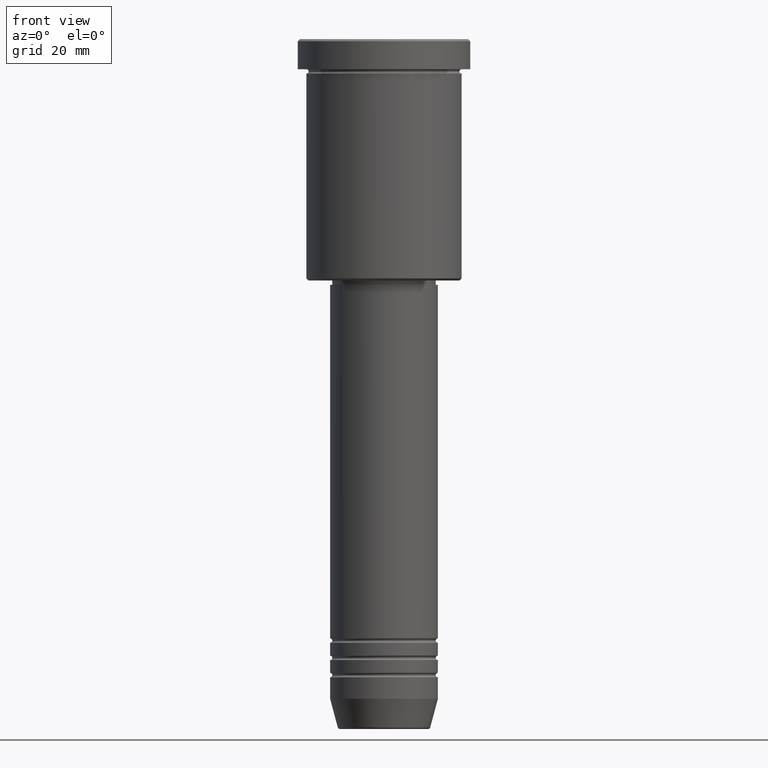
[diagram: clean part render]
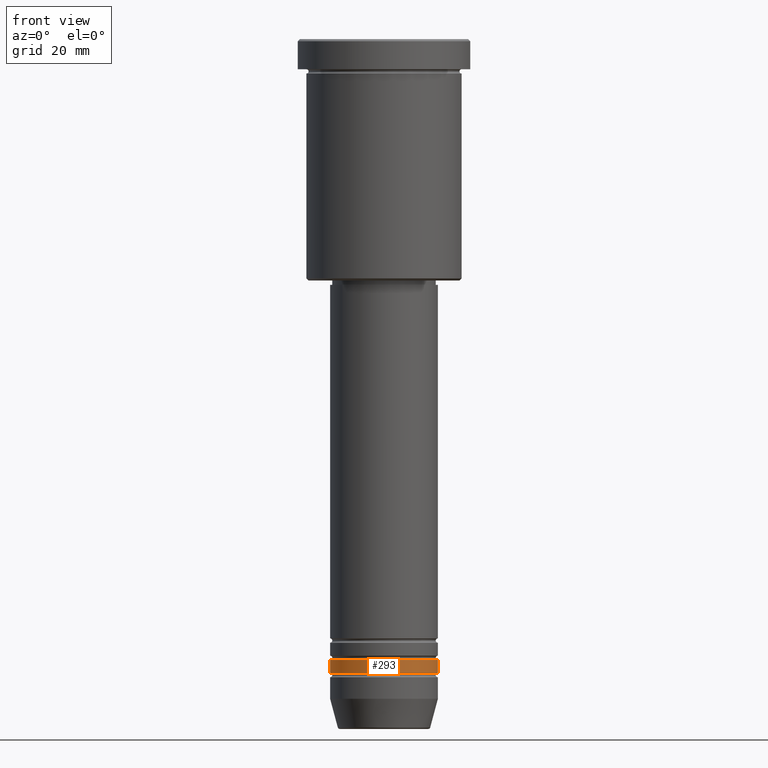
[diagram: same view with one face highlighted and labeled with its STEP entity id]
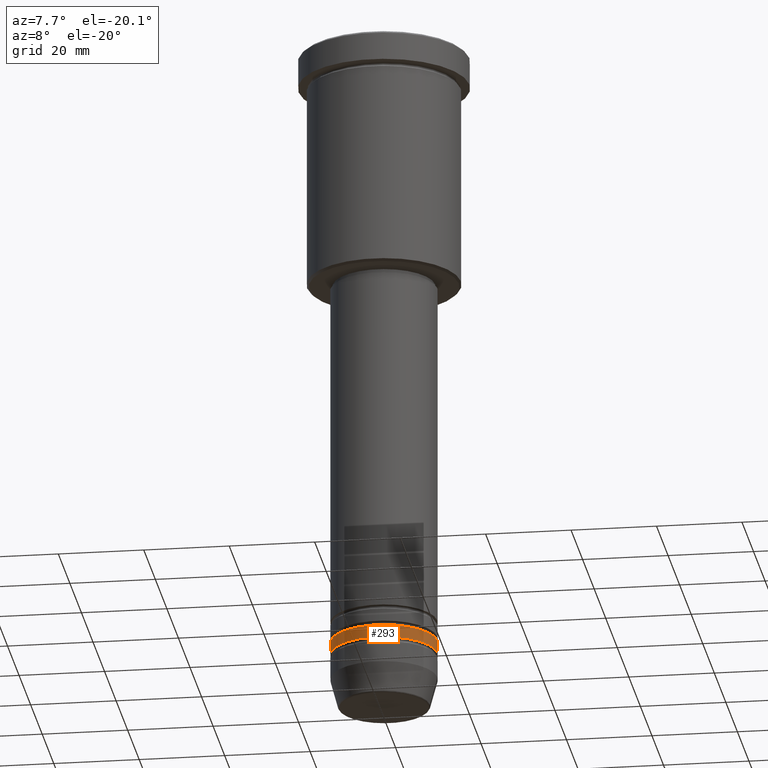
[diagram: same view with one face highlighted and labeled with its STEP entity id]
A machine part, front view. The second image highlights one B-rep face of the part: STEP entity #293.
A second angle (auxiliary view) of the same face is appended — the face is thin or edge-on in the first view.
In plain terms, the highlighted cylindrical surface (partial cylindrical patch) has radius 12.5 mm, axis along (-0, -0, 1).
Its self-contained STEP definition (entity closure, byte-faithful):
#14 = CARTESIAN_POINT ( 'NONE',  ( 12.50000000000000000, 0.000000000000000000, 0.000000000000000000 ) ) ;
#16 = CIRCLE ( 'NONE', #268, 12.50000000000000000 ) ;
#29 = LINE ( 'NONE', #14, #575 ) ;
#62 = VERTEX_POINT ( 'NONE', #1021 ) ;
#158 = DIRECTION ( 'NONE',  ( 1.000000000000000000, 0.000000000000000000, 0.000000000000000000 ) ) ;
#183 = ORIENTED_EDGE ( 'NONE', *, *, #218, .F. ) ;
#184 = CARTESIAN_POINT ( 'NONE',  ( -12.50000000000000000, 1.530808498934191521E-15, -146.9999999999999716 ) ) ;
#204 = DIRECTION ( 'NONE',  ( -0.000000000000000000, -0.000000000000000000, 1.000000000000000000 ) ) ;
#208 = CARTESIAN_POINT ( 'NONE',  ( 12.50000000000000000, 0.000000000000000000, -146.9999999999999716 ) ) ;
#217 = DIRECTION ( 'NONE',  ( 1.000000000000000000, 0.000000000000000000, 0.000000000000000000 ) ) ;
#218 = EDGE_CURVE ( 'NONE', #526, #62, #505, .T. ) ;
#241 = CARTESIAN_POINT ( 'NONE',  ( 12.50000000000000000, 0.000000000000000000, -144.0000000000000000 ) ) ;
#268 = AXIS2_PLACEMENT_3D ( 'NONE', #315, #1145, #158 ) ;
#281 = FACE_OUTER_BOUND ( 'NONE', #975, .T. ) ;
#293 = ADVANCED_FACE ( 'NONE', ( #281 ), #1012, .T. ) ;
#312 = EDGE_CURVE ( 'NONE', #526, #1087, #909, .T. ) ;
#315 = CARTESIAN_POINT ( 'NONE',  ( 0.000000000000000000, 0.000000000000000000, -144.0000000000000000 ) ) ;
#353 = ORIENTED_EDGE ( 'NONE', *, *, #1063, .T. ) ;
#385 = EDGE_CURVE ( 'NONE', #62, #751, #16, .T. ) ;
#394 = DIRECTION ( 'NONE',  ( -0.000000000000000000, -0.000000000000000000, 1.000000000000000000 ) ) ;
#482 = CARTESIAN_POINT ( 'NONE',  ( 0.000000000000000000, 0.000000000000000000, 0.000000000000000000 ) ) ;
#496 = CARTESIAN_POINT ( 'NONE',  ( -12.50000000000000000, 1.530808498934191521E-15, 0.000000000000000000 ) ) ;
#505 = LINE ( 'NONE', #496, #1020 ) ;
#526 = VERTEX_POINT ( 'NONE', #184 ) ;
#574 = DIRECTION ( 'NONE',  ( 1.000000000000000000, 0.000000000000000000, 0.000000000000000000 ) ) ;
#575 = VECTOR ( 'NONE', #394, 1000.000000000000000 ) ;
#603 = ORIENTED_EDGE ( 'NONE', *, *, #385, .F. ) ;
#641 = DIRECTION ( 'NONE',  ( -0.000000000000000000, -0.000000000000000000, 1.000000000000000000 ) ) ;
#667 = CARTESIAN_POINT ( 'NONE',  ( 0.000000000000000000, 0.000000000000000000, -146.9999999999999716 ) ) ;
#751 = VERTEX_POINT ( 'NONE', #241 ) ;
#781 = AXIS2_PLACEMENT_3D ( 'NONE', #667, #204, #217 ) ;
#880 = DIRECTION ( 'NONE',  ( -0.000000000000000000, -0.000000000000000000, 1.000000000000000000 ) ) ;
#909 = CIRCLE ( 'NONE', #781, 12.50000000000000000 ) ;
#913 = ORIENTED_EDGE ( 'NONE', *, *, #312, .T. ) ;
#975 = EDGE_LOOP ( 'NONE', ( #183, #913, #353, #603 ) ) ;
#1001 = AXIS2_PLACEMENT_3D ( 'NONE', #482, #641, #574 ) ;
#1012 = CYLINDRICAL_SURFACE ( 'NONE', #1001, 12.50000000000000000 ) ;
#1020 = VECTOR ( 'NONE', #880, 1000.000000000000000 ) ;
#1021 = CARTESIAN_POINT ( 'NONE',  ( -12.50000000000000000, 1.530808498934191521E-15, -144.0000000000000000 ) ) ;
#1063 = EDGE_CURVE ( 'NONE', #1087, #751, #29, .T. ) ;
#1087 = VERTEX_POINT ( 'NONE', #208 ) ;
#1145 = DIRECTION ( 'NONE',  ( -0.000000000000000000, -0.000000000000000000, 1.000000000000000000 ) ) ;